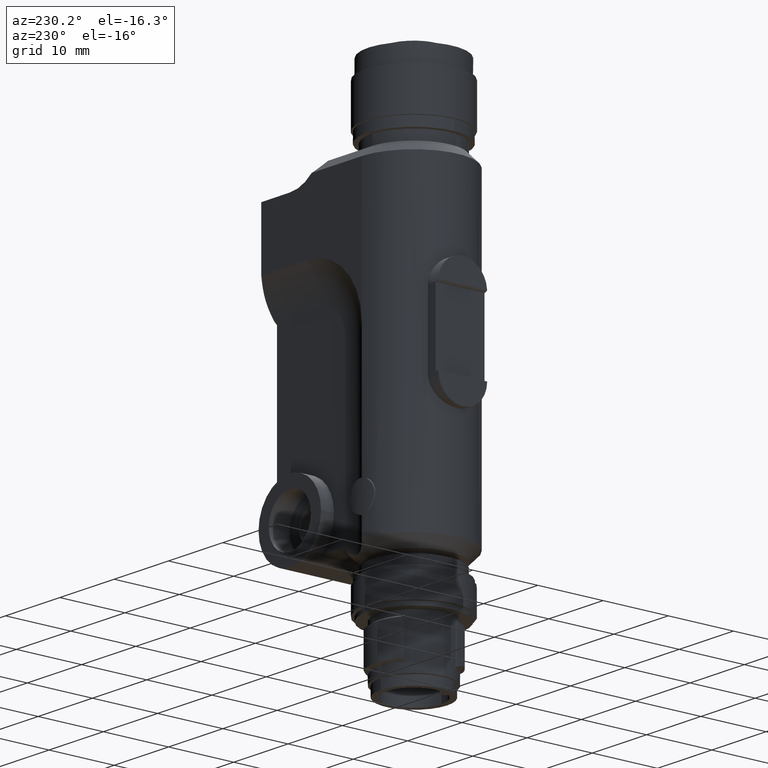
[diagram: clean part render]
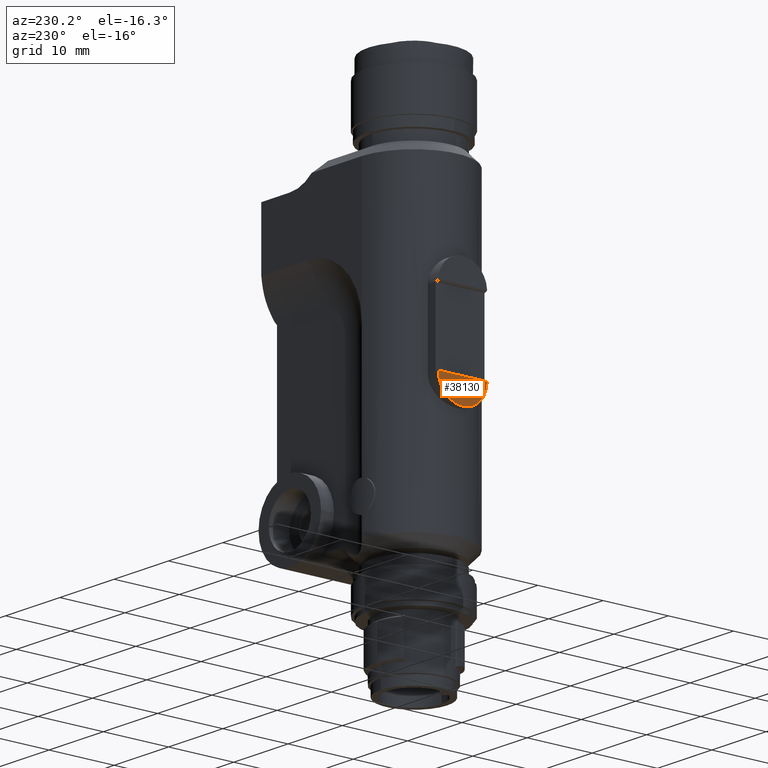
[diagram: same view with one face highlighted and labeled with its STEP entity id]
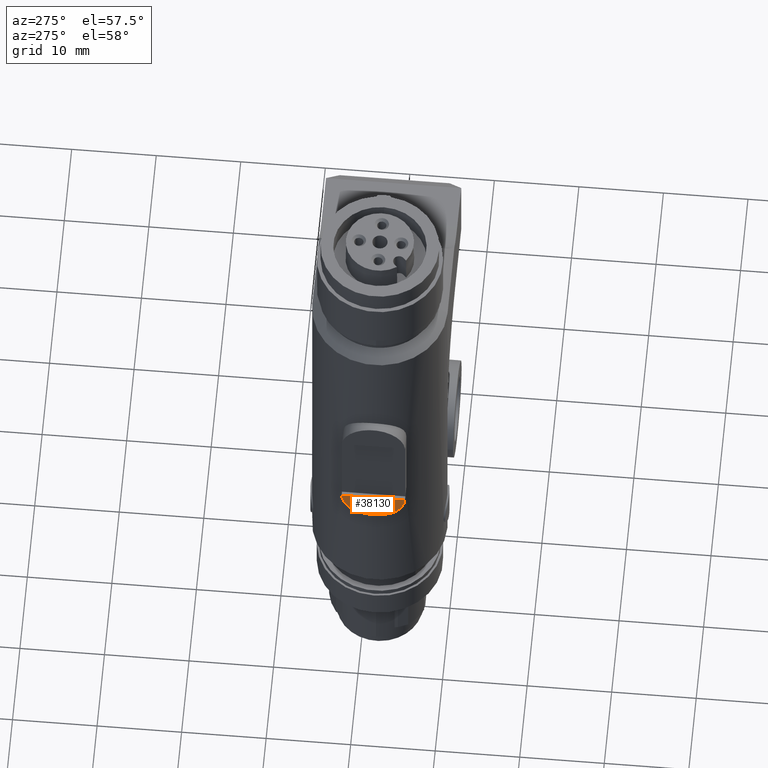
[diagram: same view with one face highlighted and labeled with its STEP entity id]
A machine part, auxiliary view. The second image highlights one B-rep face of the part: STEP entity #38130.
A second angle (auxiliary view) of the same face is appended — the face is thin or edge-on in the first view.
In plain terms, the highlighted planar face has unit normal (-1, 0, 0).
Its self-contained STEP definition (entity closure, byte-faithful):
#36840=CARTESIAN_POINT('',(3.5527136788005E-15,-8.98999999999999,21.));
#36850=DIRECTION('',(0.,1.,0.));
#36860=DIRECTION('',(0.,0.,-1.));
#36870=AXIS2_PLACEMENT_3D('',#36840,#36850,#36860);
#36880=CIRCLE('',#36870,3.75);
#36890=CARTESIAN_POINT('',(3.75,-8.98999999999999,21.));
#36900=VERTEX_POINT('',#36890);
#36910=CARTESIAN_POINT('',(-3.75,-8.98999999999999,21.));
#36920=VERTEX_POINT('',#36910);
#36930=EDGE_CURVE('',#36900,#36920,#36880,.T.);
#37870=CARTESIAN_POINT('',(-22.6,-8.98999999999999,21.));
#37880=DIRECTION('',(1.,0.,0.));
#37890=VECTOR('',#37880,1.);
#37900=LINE('',#37870,#37890);
#37910=EDGE_CURVE('',#36920,#36900,#37900,.T.);
#38040=CARTESIAN_POINT('',(-3.9375063,-8.98999999999999,21.0937563));
#38050=DIRECTION('',(0.,-1.,0.));
#38060=DIRECTION('',(0.,0.,-1.));
#38070=AXIS2_PLACEMENT_3D('',#38040,#38050,#38060);
#38080=PLANE('',#38070);
#38090=ORIENTED_EDGE('',*,*,#36930,.F.);
#38100=ORIENTED_EDGE('',*,*,#37910,.F.);
#38110=EDGE_LOOP('',(#38100,#38090));
#38120=FACE_OUTER_BOUND('',#38110,.T.);
#38130=ADVANCED_FACE('',(#38120),#38080,.T.);